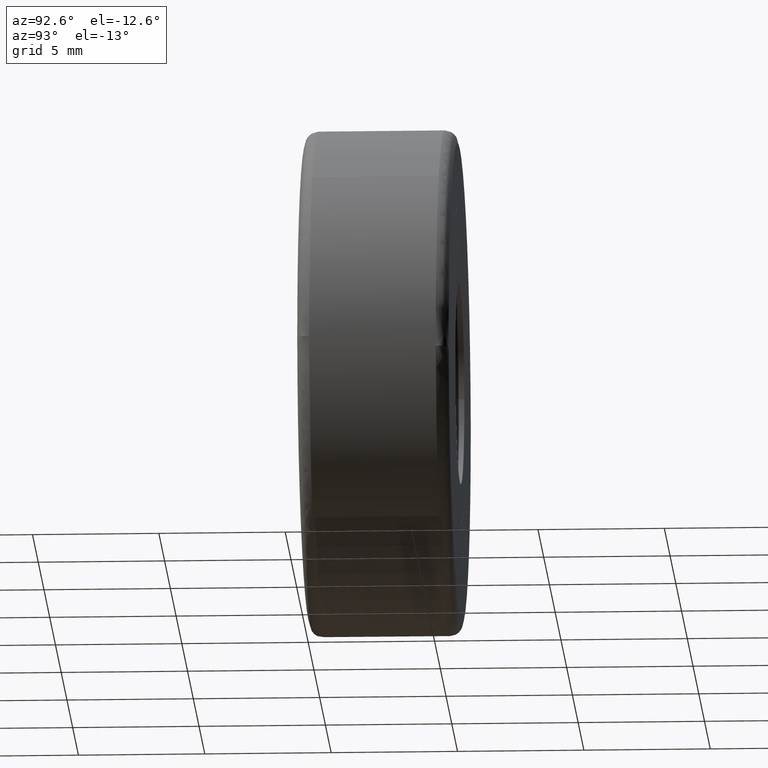
[diagram: clean part render]
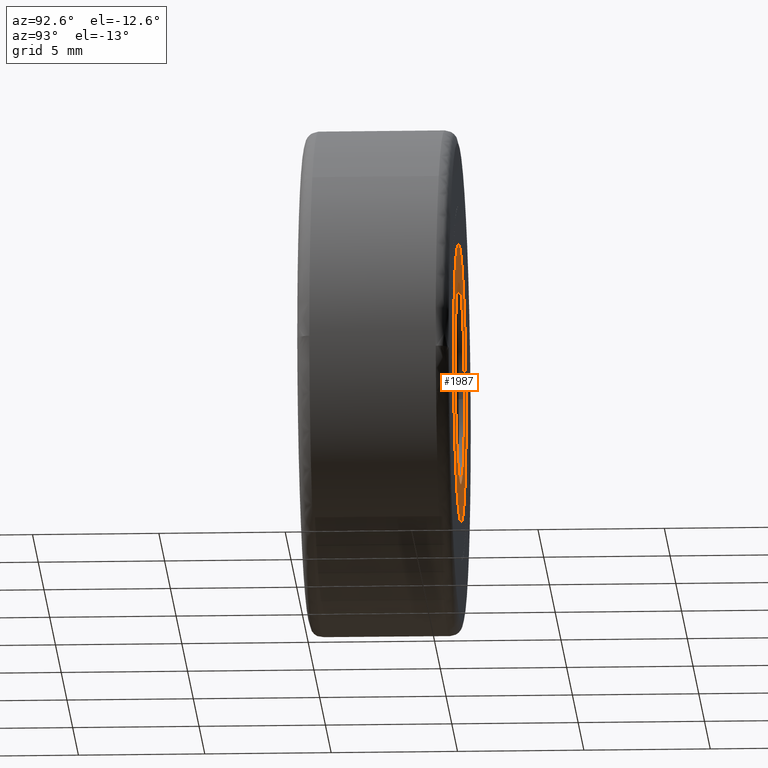
[diagram: same view with one face highlighted and labeled with its STEP entity id]
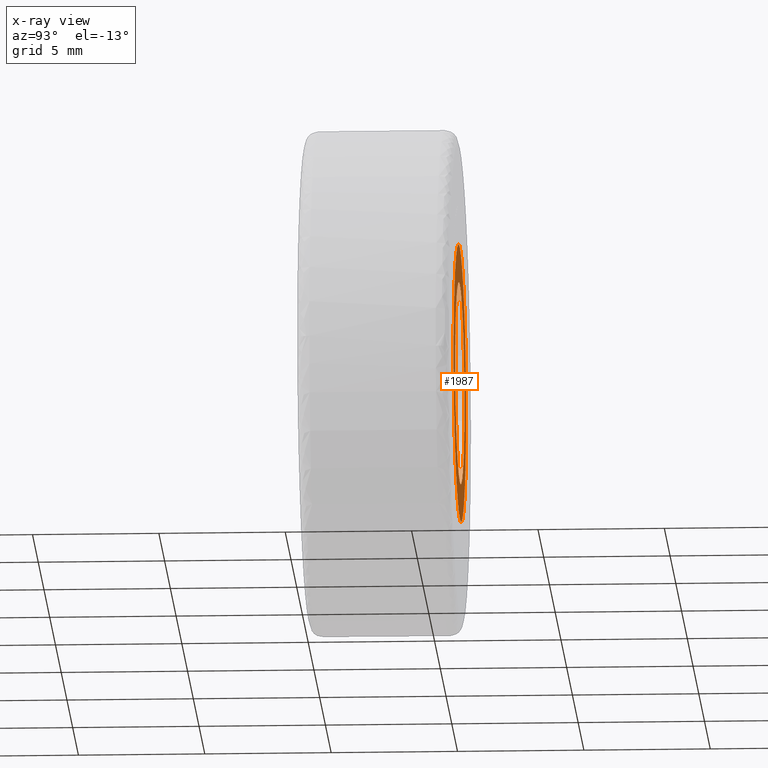
[diagram: x-ray of the same camera — body ghosted, the highlighted face saturated]
A machine part, auxiliary view. The second image highlights one B-rep face of the part: STEP entity #1987.
The next image is the same camera in x-ray: the body ghosted, the highlighted face saturated — about 0% of this face is hidden behind the body in this view.
In plain terms, the highlighted face is a freeform B-spline surface patch.
Its self-contained STEP definition (entity closure, byte-faithful):
#642=CARTESIAN_POINT('',(5.483045832432298,6.0,-0.431518712695852));
#643=VERTEX_POINT('',#642);
#649=CARTESIAN_POINT('',(0.0,6.0,5.500000000000000));
#650=VERTEX_POINT('',#649);
#651=CARTESIAN_POINT('',(5.483045832432298,6.0,-0.431518712695852));
#652=CARTESIAN_POINT('',(5.500000000000000,6.000000000000001,-0.216092416988702));
#653=CARTESIAN_POINT('',(5.500000000000000,6.0,0.0));
#654=CARTESIAN_POINT('',(5.500000000000001,6.0,5.500000000000001));
#655=CARTESIAN_POINT('',(0.0,6.0,5.500000000000000));
#663=(BOUNDED_CURVE()B_SPLINE_CURVE(2,(#651,#652,#653,#654,#655),.UNSPECIFIED.,.F.,.U.)B_SPLINE_CURVE_WITH_KNOTS((3,2,3),(0.736331498030611,0.750000000000000,1.0),.UNSPECIFIED.)CURVE()GEOMETRIC_REPRESENTATION_ITEM()RATIONAL_B_SPLINE_CURVE((0.969723768126422,0.983986353847311,1.0,0.707106781186548,1.0))REPRESENTATION_ITEM(''));
#664=EDGE_CURVE('',#643,#650,#663,.T.);
#666=CARTESIAN_POINT('',(-5.483045832432298,6.0,0.431518712695853));
#667=VERTEX_POINT('',#666);
#668=CARTESIAN_POINT('',(0.0,6.0,5.500000000000000));
#669=CARTESIAN_POINT('',(-5.084153576696727,6.000000000000001,5.500000000000000));
#670=CARTESIAN_POINT('',(-5.483045832432298,6.000000000000001,0.431518712695853));
#678=(BOUNDED_CURVE()B_SPLINE_CURVE(2,(#668,#669,#670),.UNSPECIFIED.,.F.,.U.)B_SPLINE_CURVE_WITH_KNOTS((3,3),(0.0,0.236331498030611),.UNSPECIFIED.)CURVE()GEOMETRIC_REPRESENTATION_ITEM()RATIONAL_B_SPLINE_CURVE((1.0,0.723120427339237,0.969723768126422))REPRESENTATION_ITEM(''));
#679=EDGE_CURVE('',#650,#667,#678,.T.);
#725=CARTESIAN_POINT('',(0.0,6.0,-5.500000000000000));
#726=VERTEX_POINT('',#725);
#727=CARTESIAN_POINT('',(-5.483045832432298,6.000000000000001,0.431518712695853));
#728=CARTESIAN_POINT('',(-5.500000000000000,6.000000000000001,0.216092416988701));
#729=CARTESIAN_POINT('',(-5.500000000000000,6.0,0.0));
#730=CARTESIAN_POINT('',(-5.500000000000001,6.0,-5.500000000000001));
#731=CARTESIAN_POINT('',(0.0,6.0,-5.500000000000000));
#739=(BOUNDED_CURVE()B_SPLINE_CURVE(2,(#727,#728,#729,#730,#731),.UNSPECIFIED.,.F.,.U.)B_SPLINE_CURVE_WITH_KNOTS((3,2,3),(0.236331498030611,0.250000000000000,0.500000000000000),.UNSPECIFIED.)CURVE()GEOMETRIC_REPRESENTATION_ITEM()RATIONAL_B_SPLINE_CURVE((0.969723768126422,0.983986353847311,1.0,0.707106781186548,1.0))REPRESENTATION_ITEM(''));
#740=EDGE_CURVE('',#667,#726,#739,.T.);
#742=CARTESIAN_POINT('',(0.0,6.0,-5.500000000000000));
#743=CARTESIAN_POINT('',(5.084153576696725,6.0,-5.499999999999999));
#744=CARTESIAN_POINT('',(5.483045832432298,6.0,-0.431518712695852));
#752=(BOUNDED_CURVE()B_SPLINE_CURVE(2,(#742,#743,#744),.UNSPECIFIED.,.F.,.U.)B_SPLINE_CURVE_WITH_KNOTS((3,3),(0.500000000000000,0.736331498030611),.UNSPECIFIED.)CURVE()GEOMETRIC_REPRESENTATION_ITEM()RATIONAL_B_SPLINE_CURVE((1.0,0.723120427339237,0.969723768126422))REPRESENTATION_ITEM(''));
#753=EDGE_CURVE('',#726,#643,#752,.T.);
#1428=CARTESIAN_POINT('',(3.972038105452703,6.0,-0.472136938643547));
#1429=VERTEX_POINT('',#1428);
#1430=CARTESIAN_POINT('',(0.0,6.0,4.0));
#1431=VERTEX_POINT('',#1430);
#1432=CARTESIAN_POINT('',(3.972038105452703,6.000000000000001,-0.472136938643547));
#1433=CARTESIAN_POINT('',(4.000000000000001,6.0,-0.236896478624328));
#1434=CARTESIAN_POINT('',(4.0,6.0,-1.746479E-016));
#1435=CARTESIAN_POINT('',(4.000000000000000,6.0,4.000000000000000));
#1436=CARTESIAN_POINT('',(0.0,6.0,4.0));
#1444=(BOUNDED_CURVE()B_SPLINE_CURVE(2,(#1432,#1433,#1434,#1435,#1436),.UNSPECIFIED.,.F.,.U.)B_SPLINE_CURVE_WITH_KNOTS((3,2,3),(0.229562473514239,0.250000000000000,0.500000000000000),.UNSPECIFIED.)CURVE()GEOMETRIC_REPRESENTATION_ITEM()RATIONAL_B_SPLINE_CURVE((0.956026754185132,0.976055948332001,1.0,0.707106781186548,1.0))REPRESENTATION_ITEM(''));
#1445=EDGE_CURVE('',#1429,#1431,#1444,.T.);
#1486=CARTESIAN_POINT('',(-3.992539193686250,6.0,0.244194158159335));
#1487=VERTEX_POINT('',#1486);
#1493=CARTESIAN_POINT('',(0.0,6.0,4.0));
#1494=CARTESIAN_POINT('',(-3.762824267585204,6.0,4.000000000000001));
#1495=CARTESIAN_POINT('',(-3.992539193686250,5.999999999999999,0.244194158159335));
#1503=(BOUNDED_CURVE()B_SPLINE_CURVE(2,(#1493,#1494,#1495),.UNSPECIFIED.,.F.,.U.)B_SPLINE_CURVE_WITH_KNOTS((3,3),(0.500000000000000,0.739332962240248),.UNSPECIFIED.)CURVE()GEOMETRIC_REPRESENTATION_ITEM()RATIONAL_B_SPLINE_CURVE((1.0,0.719603993285181,0.976072041669516))REPRESENTATION_ITEM(''));
#1504=EDGE_CURVE('',#1431,#1487,#1503,.T.);
#1527=CARTESIAN_POINT('',(0.0,6.0,-4.0));
#1528=VERTEX_POINT('',#1527);
#1529=CARTESIAN_POINT('',(0.0,6.0,-4.0));
#1530=CARTESIAN_POINT('',(3.552698103775726,6.0,-4.000000000000000));
#1531=CARTESIAN_POINT('',(3.972038105452703,6.0,-0.472136938643547));
#1539=(BOUNDED_CURVE()B_SPLINE_CURVE(2,(#1529,#1530,#1531),.UNSPECIFIED.,.F.,.U.)B_SPLINE_CURVE_WITH_KNOTS((3,3),(0.0,0.229562473514239),.UNSPECIFIED.)CURVE()GEOMETRIC_REPRESENTATION_ITEM()RATIONAL_B_SPLINE_CURVE((1.0,0.731050832854546,0.956026754185132))REPRESENTATION_ITEM(''));
#1540=EDGE_CURVE('',#1528,#1429,#1539,.T.);
#1542=CARTESIAN_POINT('',(-3.992539193686250,6.0,0.244194158159335));
#1543=CARTESIAN_POINT('',(-4.000000000000001,6.0,0.122211053214319));
#1544=CARTESIAN_POINT('',(-4.0,6.0,-1.746479E-016));
#1545=CARTESIAN_POINT('',(-4.000000000000000,6.0,-4.000000000000000));
#1546=CARTESIAN_POINT('',(0.0,6.0,-4.0));
#1554=(BOUNDED_CURVE()B_SPLINE_CURVE(2,(#1542,#1543,#1544,#1545,#1546),.UNSPECIFIED.,.F.,.U.)B_SPLINE_CURVE_WITH_KNOTS((3,2,3),(0.739332962240248,0.750000000000000,1.0),.UNSPECIFIED.)CURVE()GEOMETRIC_REPRESENTATION_ITEM()RATIONAL_B_SPLINE_CURVE((0.976072041669514,0.987502787901366,1.0,0.707106781186548,1.0))REPRESENTATION_ITEM(''));
#1555=EDGE_CURVE('',#1487,#1528,#1554,.T.);
#1970=CARTESIAN_POINT('',(-6.047771656298330,6.0,6.049449978679865));
#1971=CARTESIAN_POINT('',(-6.047771656298330,6.0,-6.049450273722857));
#1972=CARTESIAN_POINT('',(6.047771459603002,6.0,6.049449978679865));
#1973=CARTESIAN_POINT('',(6.047771459603002,6.0,-6.049450273722857));
#1974=B_SPLINE_SURFACE_WITH_KNOTS('',1,1,((#1970,#1972),(#1971,#1973)),.UNSPECIFIED.,.F.,.F.,.U.,(2,2),(2,2),(0.0,12.098900252402720),(0.0,12.095543115901330),.UNSPECIFIED.);
#1975=ORIENTED_EDGE('',*,*,#664,.F.);
#1976=ORIENTED_EDGE('',*,*,#753,.F.);
#1977=ORIENTED_EDGE('',*,*,#740,.F.);
#1978=ORIENTED_EDGE('',*,*,#679,.F.);
#1979=EDGE_LOOP('',(#1975,#1976,#1977,#1978));
#1980=FACE_OUTER_BOUND('',#1979,.T.);
#1981=ORIENTED_EDGE('',*,*,#1504,.T.);
#1982=ORIENTED_EDGE('',*,*,#1555,.T.);
#1983=ORIENTED_EDGE('',*,*,#1540,.T.);
#1984=ORIENTED_EDGE('',*,*,#1445,.T.);
#1985=EDGE_LOOP('',(#1981,#1982,#1983,#1984));
#1986=FACE_BOUND('',#1985,.T.);
#1987=ADVANCED_FACE('',(#1980,#1986),#1974,.F.);